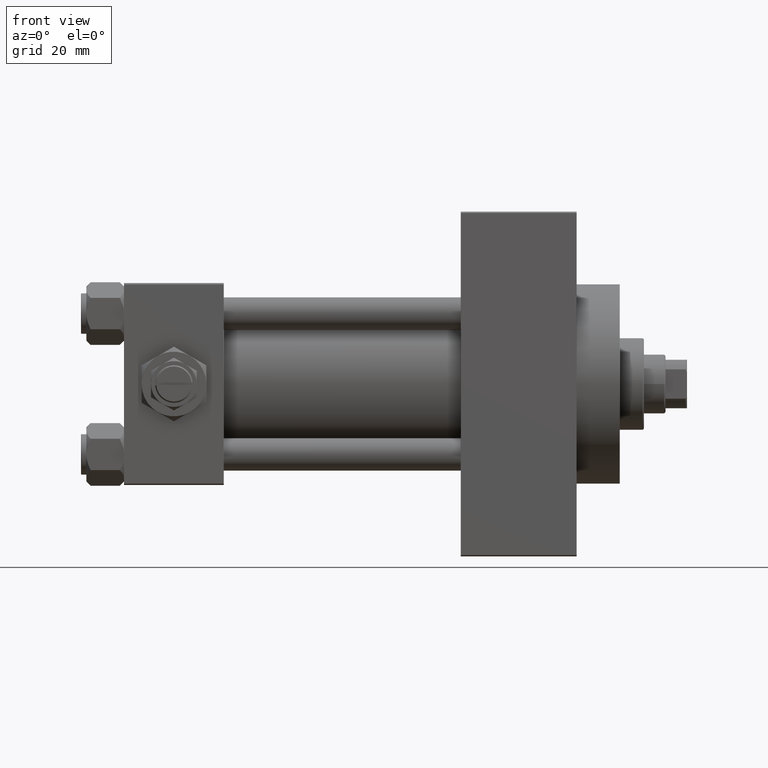
[diagram: clean part render]
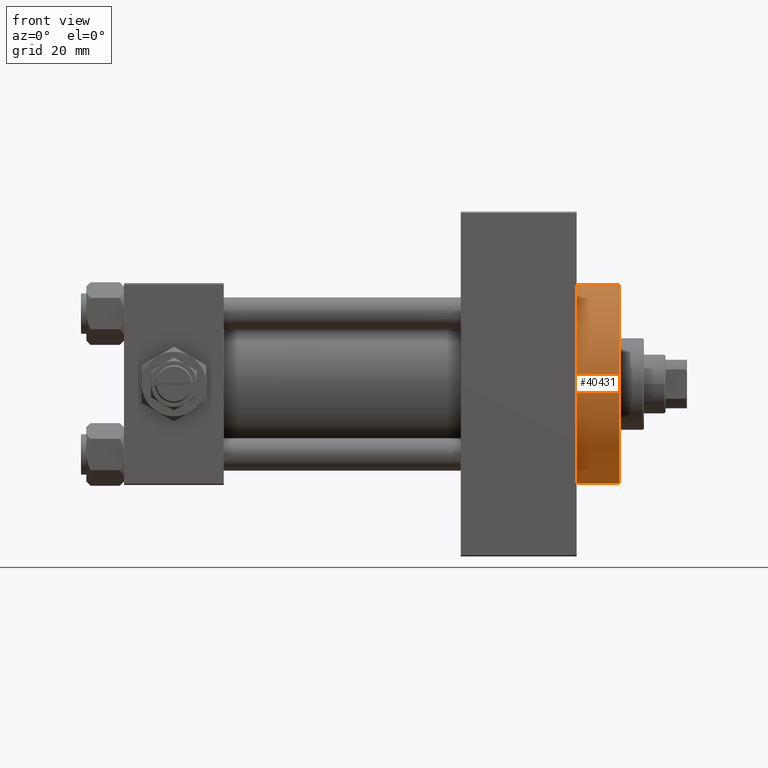
[diagram: same view with one face highlighted and labeled with its STEP entity id]
A machine part, front view. The second image highlights one B-rep face of the part: STEP entity #40431.
In plain terms, the highlighted cylindrical surface (partial cylindrical patch) has radius 37 mm, axis along (-1, -0, -0).
Its self-contained STEP definition (entity closure, byte-faithful):
#2039 = CARTESIAN_POINT ( 'NONE',  ( 184.0000000000000000, 4.531193156845206793E-15, -37.00000000000000000 ) ) ;
#4379 = LINE ( 'NONE', #30692, #43806 ) ;
#5491 = VERTEX_POINT ( 'NONE', #42518 ) ;
#5729 = LINE ( 'NONE', #2039, #35867 ) ;
#7845 = AXIS2_PLACEMENT_3D ( 'NONE', #26659, #24173, #12358 ) ;
#10031 = DIRECTION ( 'NONE',  ( -1.000000000000000000, -0.000000000000000000, -0.000000000000000000 ) ) ;
#10293 = ORIENTED_EDGE ( 'NONE', *, *, #25276, .T. ) ;
#11639 = CIRCLE ( 'NONE', #39130, 37.00000000000000000 ) ;
#12358 = DIRECTION ( 'NONE',  ( 0.000000000000000000, 0.000000000000000000, -1.000000000000000000 ) ) ;
#12686 = CARTESIAN_POINT ( 'NONE',  ( 184.0000000000000000, 0.000000000000000000, 0.000000000000000000 ) ) ;
#13516 = EDGE_CURVE ( 'NONE', #23253, #5491, #5729, .T. ) ;
#13742 = CARTESIAN_POINT ( 'NONE',  ( 167.9999999999999716, 0.000000000000000000, 37.00000000000000000 ) ) ;
#14465 = CARTESIAN_POINT ( 'NONE',  ( 184.0000000000000000, 0.000000000000000000, 0.000000000000000000 ) ) ;
#15745 = EDGE_LOOP ( 'NONE', ( #18005, #38831, #34136, #10293 ) ) ;
#15843 = EDGE_CURVE ( 'NONE', #40937, #23584, #4379, .T. ) ;
#18005 = ORIENTED_EDGE ( 'NONE', *, *, #13516, .F. ) ;
#20967 = EDGE_CURVE ( 'NONE', #40937, #23253, #11639, .T. ) ;
#23253 = VERTEX_POINT ( 'NONE', #28563 ) ;
#23584 = VERTEX_POINT ( 'NONE', #13742 ) ;
#24173 = DIRECTION ( 'NONE',  ( 1.000000000000000000, 0.000000000000000000, 0.000000000000000000 ) ) ;
#25276 = EDGE_CURVE ( 'NONE', #23584, #5491, #29047, .T. ) ;
#26659 = CARTESIAN_POINT ( 'NONE',  ( 167.9999999999999716, 0.000000000000000000, 0.000000000000000000 ) ) ;
#26984 = DIRECTION ( 'NONE',  ( 0.000000000000000000, 0.000000000000000000, -1.000000000000000000 ) ) ;
#28563 = CARTESIAN_POINT ( 'NONE',  ( 184.0000000000000000, 4.531193156845206793E-15, -37.00000000000000000 ) ) ;
#28739 = CYLINDRICAL_SURFACE ( 'NONE', #32541, 37.00000000000000000 ) ;
#29047 = CIRCLE ( 'NONE', #7845, 37.00000000000000000 ) ;
#30692 = CARTESIAN_POINT ( 'NONE',  ( 184.0000000000000000, 0.000000000000000000, 37.00000000000000000 ) ) ;
#32541 = AXIS2_PLACEMENT_3D ( 'NONE', #14465, #10031, #47686 ) ;
#33039 = CARTESIAN_POINT ( 'NONE',  ( 184.0000000000000000, 0.000000000000000000, 37.00000000000000000 ) ) ;
#34136 = ORIENTED_EDGE ( 'NONE', *, *, #15843, .T. ) ;
#35867 = VECTOR ( 'NONE', #42958, 1000.000000000000000 ) ;
#38831 = ORIENTED_EDGE ( 'NONE', *, *, #20967, .F. ) ;
#39130 = AXIS2_PLACEMENT_3D ( 'NONE', #12686, #45675, #26984 ) ;
#40431 = ADVANCED_FACE ( 'NONE', ( #48178 ), #28739, .T. ) ;
#40937 = VERTEX_POINT ( 'NONE', #33039 ) ;
#42518 = CARTESIAN_POINT ( 'NONE',  ( 167.9999999999999716, 4.531193156845206793E-15, -37.00000000000000000 ) ) ;
#42958 = DIRECTION ( 'NONE',  ( -1.000000000000000000, -0.000000000000000000, -0.000000000000000000 ) ) ;
#43806 = VECTOR ( 'NONE', #45701, 1000.000000000000000 ) ;
#45675 = DIRECTION ( 'NONE',  ( 1.000000000000000000, 0.000000000000000000, 0.000000000000000000 ) ) ;
#45701 = DIRECTION ( 'NONE',  ( -1.000000000000000000, -0.000000000000000000, -0.000000000000000000 ) ) ;
#47686 = DIRECTION ( 'NONE',  ( 0.000000000000000000, 0.000000000000000000, 1.000000000000000000 ) ) ;
#48178 = FACE_OUTER_BOUND ( 'NONE', #15745, .T. ) ;